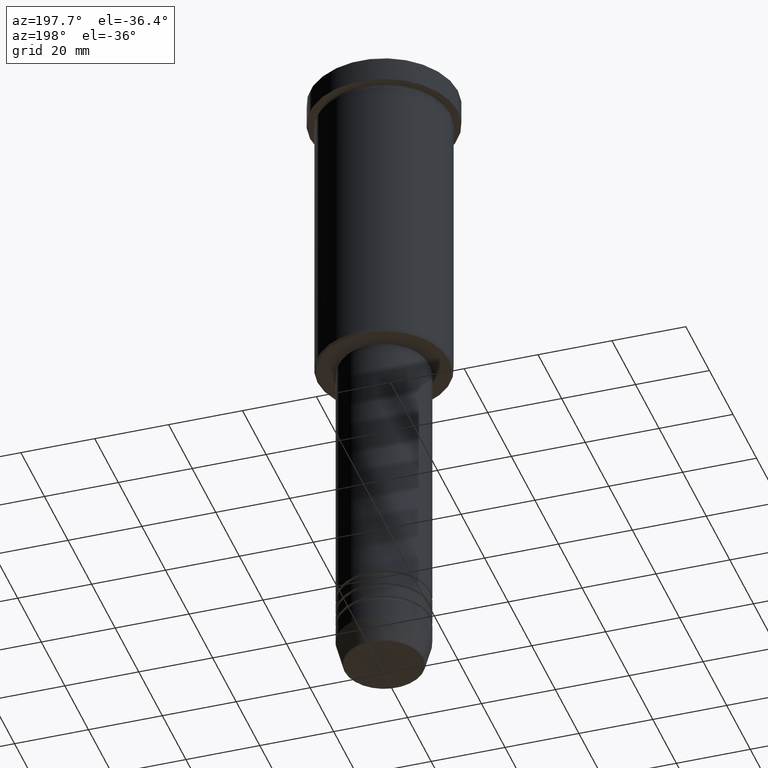
[diagram: clean part render]
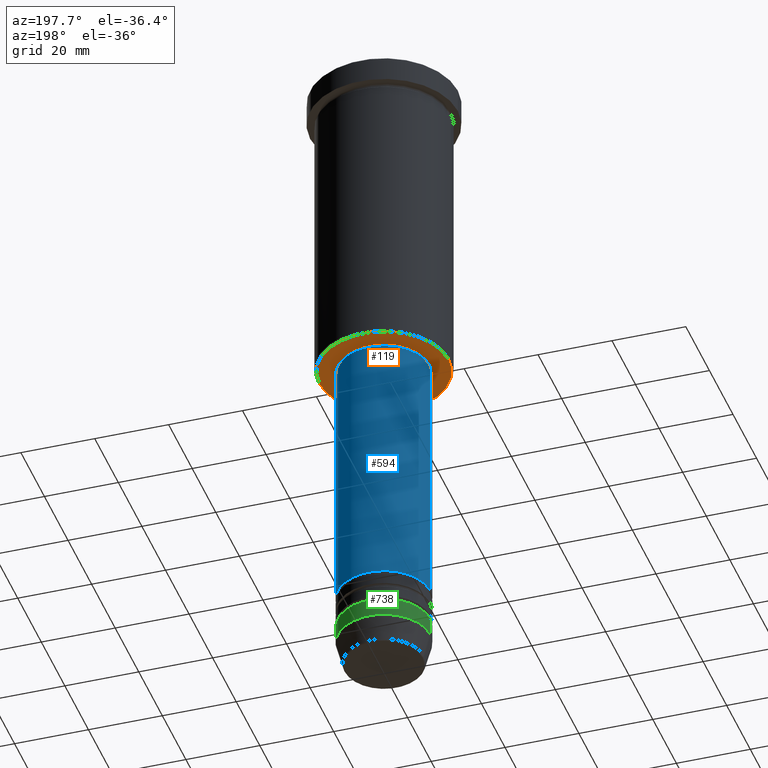
[diagram: same view with three faces highlighted in distinct colors, each labeled with its STEP entity id]
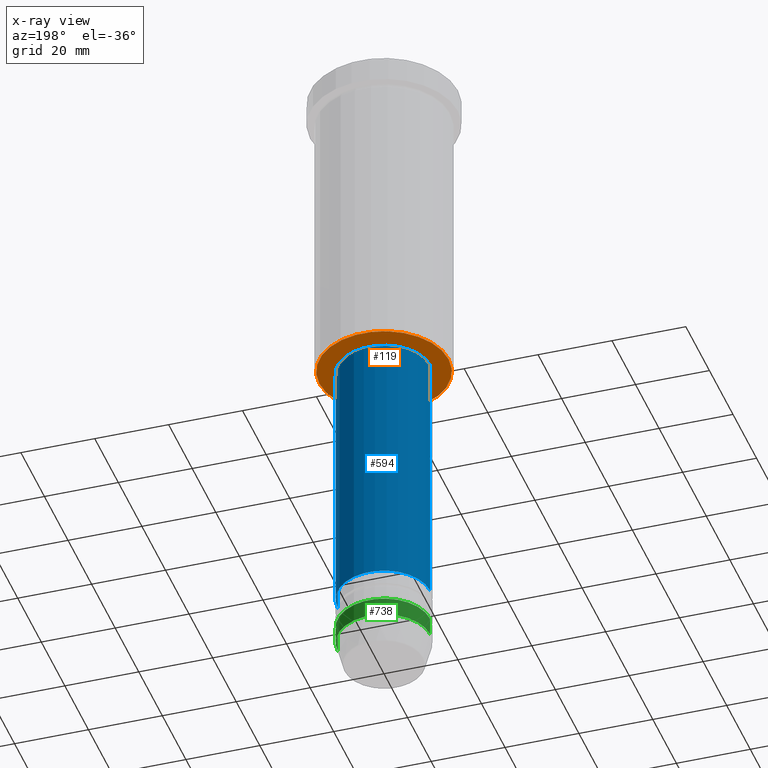
[diagram: x-ray of the same camera — body ghosted, the three highlighted faces saturated]
A machine part, auxiliary view with three faces highlighted in distinct colors.
The next image is the same camera in x-ray (body ghosted, the three faces saturated) — at least one of them is partly hidden behind the body in this view.
Their STEP definitions:

[orange] entity #119 — the highlighted planar face has unit normal (0, 0, -1).
#14 = DIRECTION ( 'NONE',  ( -0.000000000000000000, -0.000000000000000000, 1.000000000000000000 ) ) ;
#36 = EDGE_CURVE ( 'NONE', #786, #39, #1072, .T. ) ;
#39 = VERTEX_POINT ( 'NONE', #999 ) ;
#101 = DIRECTION ( 'NONE',  ( -1.000000000000000000, 0.000000000000000000, 0.000000000000000000 ) ) ;
#119 = ADVANCED_FACE ( 'NONE', ( #498, #677 ), #316, .T. ) ;
#122 = DIRECTION ( 'NONE',  ( 0.000000000000000000, 0.000000000000000000, -1.000000000000000000 ) ) ;
#128 = ORIENTED_EDGE ( 'NONE', *, *, #656, .T. ) ;
#132 = ORIENTED_EDGE ( 'NONE', *, *, #826, .T. ) ;
#308 = DIRECTION ( 'NONE',  ( -1.000000000000000000, 0.000000000000000000, 0.000000000000000000 ) ) ;
#312 = VERTEX_POINT ( 'NONE', #512 ) ;
#316 = PLANE ( 'NONE',  #1168 ) ;
#318 = CARTESIAN_POINT ( 'NONE',  ( 17.49999999999997513, 0.000000000000000000, -86.00000000000000000 ) ) ;
#324 = DIRECTION ( 'NONE',  ( -0.000000000000000000, -0.000000000000000000, 1.000000000000000000 ) ) ;
#367 = CIRCLE ( 'NONE', #891, 17.49999999999997513 ) ;
#384 = AXIS2_PLACEMENT_3D ( 'NONE', #915, #14, #634 ) ;
#399 = CARTESIAN_POINT ( 'NONE',  ( 0.000000000000000000, 18.00000000000000000, -86.00000000000000000 ) ) ;
#403 = AXIS2_PLACEMENT_3D ( 'NONE', #991, #926, #101 ) ;
#426 = CIRCLE ( 'NONE', #447, 12.00000000000000000 ) ;
#447 = AXIS2_PLACEMENT_3D ( 'NONE', #1041, #324, #768 ) ;
#490 = EDGE_LOOP ( 'NONE', ( #734, #574 ) ) ;
#498 = FACE_OUTER_BOUND ( 'NONE', #792, .T. ) ;
#512 = CARTESIAN_POINT ( 'NONE',  ( -17.49999999999997513, 2.173748068486550063E-15, -86.00000000000000000 ) ) ;
#574 = ORIENTED_EDGE ( 'NONE', *, *, #1066, .T. ) ;
#634 = DIRECTION ( 'NONE',  ( 1.000000000000000000, 0.000000000000000000, 0.000000000000000000 ) ) ;
#656 = EDGE_CURVE ( 'NONE', #312, #820, #1077, .T. ) ;
#677 = FACE_BOUND ( 'NONE', #490, .T. ) ;
#734 = ORIENTED_EDGE ( 'NONE', *, *, #36, .T. ) ;
#768 = DIRECTION ( 'NONE',  ( 1.000000000000000000, 0.000000000000000000, 0.000000000000000000 ) ) ;
#786 = VERTEX_POINT ( 'NONE', #956 ) ;
#792 = EDGE_LOOP ( 'NONE', ( #132, #128 ) ) ;
#820 = VERTEX_POINT ( 'NONE', #318 ) ;
#826 = EDGE_CURVE ( 'NONE', #820, #312, #367, .T. ) ;
#891 = AXIS2_PLACEMENT_3D ( 'NONE', #1140, #122, #308 ) ;
#915 = CARTESIAN_POINT ( 'NONE',  ( 0.000000000000000000, 0.000000000000000000, -86.00000000000000000 ) ) ;
#926 = DIRECTION ( 'NONE',  ( 0.000000000000000000, 0.000000000000000000, -1.000000000000000000 ) ) ;
#956 = CARTESIAN_POINT ( 'NONE',  ( 12.00000000000000000, 0.000000000000000000, -86.00000000000000000 ) ) ;
#958 = DIRECTION ( 'NONE',  ( -1.000000000000000000, 0.000000000000000000, -0.000000000000000000 ) ) ;
#991 = CARTESIAN_POINT ( 'NONE',  ( 0.000000000000000000, 0.000000000000000000, -86.00000000000000000 ) ) ;
#999 = CARTESIAN_POINT ( 'NONE',  ( -12.00000000000000000, 1.469576158976823947E-15, -86.00000000000000000 ) ) ;
#1041 = CARTESIAN_POINT ( 'NONE',  ( 0.000000000000000000, 0.000000000000000000, -86.00000000000000000 ) ) ;
#1042 = DIRECTION ( 'NONE',  ( 0.000000000000000000, 0.000000000000000000, -1.000000000000000000 ) ) ;
#1066 = EDGE_CURVE ( 'NONE', #39, #786, #426, .T. ) ;
#1072 = CIRCLE ( 'NONE', #384, 12.00000000000000000 ) ;
#1077 = CIRCLE ( 'NONE', #403, 17.49999999999997513 ) ;
#1140 = CARTESIAN_POINT ( 'NONE',  ( 0.000000000000000000, 0.000000000000000000, -86.00000000000000000 ) ) ;
#1168 = AXIS2_PLACEMENT_3D ( 'NONE', #399, #1042, #958 ) ;

[blue] entity #594 — the highlighted cylindrical surface (partial cylindrical patch) has radius 12.5 mm, axis along (-0, -0, 1).
#47 = AXIS2_PLACEMENT_3D ( 'NONE', #147, #444, #784 ) ;
#59 = EDGE_CURVE ( 'NONE', #84, #456, #672, .T. ) ;
#84 = VERTEX_POINT ( 'NONE', #853 ) ;
#123 = AXIS2_PLACEMENT_3D ( 'NONE', #509, #601, #706 ) ;
#147 = CARTESIAN_POINT ( 'NONE',  ( 0.000000000000000000, 0.000000000000000000, -159.0000000000000000 ) ) ;
#158 = FACE_OUTER_BOUND ( 'NONE', #935, .T. ) ;
#173 = EDGE_CURVE ( 'NONE', #592, #1045, #573, .T. ) ;
#212 = ORIENTED_EDGE ( 'NONE', *, *, #59, .F. ) ;
#259 = ORIENTED_EDGE ( 'NONE', *, *, #496, .F. ) ;
#439 = CYLINDRICAL_SURFACE ( 'NONE', #123, 12.50000000000000000 ) ;
#444 = DIRECTION ( 'NONE',  ( -0.000000000000000000, -0.000000000000000000, 1.000000000000000000 ) ) ;
#455 = CARTESIAN_POINT ( 'NONE',  ( 12.50000000000000000, 0.000000000000000000, -87.00000000000002842 ) ) ;
#456 = VERTEX_POINT ( 'NONE', #455 ) ;
#466 = CIRCLE ( 'NONE', #47, 12.50000000000000000 ) ;
#482 = AXIS2_PLACEMENT_3D ( 'NONE', #1089, #559, #640 ) ;
#496 = EDGE_CURVE ( 'NONE', #456, #1045, #812, .T. ) ;
#507 = ORIENTED_EDGE ( 'NONE', *, *, #937, .T. ) ;
#509 = CARTESIAN_POINT ( 'NONE',  ( 0.000000000000000000, 0.000000000000000000, 0.000000000000000000 ) ) ;
#559 = DIRECTION ( 'NONE',  ( -0.000000000000000000, -0.000000000000000000, 1.000000000000000000 ) ) ;
#573 = LINE ( 'NONE', #949, #1092 ) ;
#580 = DIRECTION ( 'NONE',  ( -0.000000000000000000, -0.000000000000000000, 1.000000000000000000 ) ) ;
#592 = VERTEX_POINT ( 'NONE', #1150 ) ;
#594 = ADVANCED_FACE ( 'NONE', ( #158 ), #439, .T. ) ;
#601 = DIRECTION ( 'NONE',  ( -0.000000000000000000, -0.000000000000000000, 1.000000000000000000 ) ) ;
#609 = ORIENTED_EDGE ( 'NONE', *, *, #173, .T. ) ;
#640 = DIRECTION ( 'NONE',  ( 1.000000000000000000, 0.000000000000000000, 0.000000000000000000 ) ) ;
#672 = LINE ( 'NONE', #860, #755 ) ;
#706 = DIRECTION ( 'NONE',  ( 1.000000000000000000, 0.000000000000000000, 0.000000000000000000 ) ) ;
#755 = VECTOR ( 'NONE', #580, 1000.000000000000000 ) ;
#784 = DIRECTION ( 'NONE',  ( 1.000000000000000000, 0.000000000000000000, 0.000000000000000000 ) ) ;
#812 = CIRCLE ( 'NONE', #482, 12.50000000000000000 ) ;
#852 = CARTESIAN_POINT ( 'NONE',  ( -12.50000000000000000, 1.530808498934191521E-15, -87.00000000000002842 ) ) ;
#853 = CARTESIAN_POINT ( 'NONE',  ( 12.50000000000000000, 0.000000000000000000, -159.0000000000000000 ) ) ;
#860 = CARTESIAN_POINT ( 'NONE',  ( 12.50000000000000000, 0.000000000000000000, 0.000000000000000000 ) ) ;
#935 = EDGE_LOOP ( 'NONE', ( #507, #609, #259, #212 ) ) ;
#937 = EDGE_CURVE ( 'NONE', #84, #592, #466, .T. ) ;
#949 = CARTESIAN_POINT ( 'NONE',  ( -12.50000000000000000, 1.530808498934191521E-15, 0.000000000000000000 ) ) ;
#1045 = VERTEX_POINT ( 'NONE', #852 ) ;
#1047 = DIRECTION ( 'NONE',  ( -0.000000000000000000, -0.000000000000000000, 1.000000000000000000 ) ) ;
#1089 = CARTESIAN_POINT ( 'NONE',  ( 0.000000000000000000, 0.000000000000000000, -87.00000000000002842 ) ) ;
#1092 = VECTOR ( 'NONE', #1047, 1000.000000000000000 ) ;
#1150 = CARTESIAN_POINT ( 'NONE',  ( -12.50000000000000000, 1.530808498934191521E-15, -159.0000000000000000 ) ) ;

[green] entity #738 — the highlighted cylindrical surface (partial cylindrical patch) has radius 12.5 mm, axis along (-0, -0, 1).
#33 = LINE ( 'NONE', #773, #479 ) ;
#38 = DIRECTION ( 'NONE',  ( -0.000000000000000000, -0.000000000000000000, 1.000000000000000000 ) ) ;
#96 = DIRECTION ( 'NONE',  ( -0.000000000000000000, -0.000000000000000000, 1.000000000000000000 ) ) ;
#117 = VERTEX_POINT ( 'NONE', #382 ) ;
#150 = EDGE_CURVE ( 'NONE', #433, #643, #33, .T. ) ;
#153 = DIRECTION ( 'NONE',  ( -0.000000000000000000, -0.000000000000000000, 1.000000000000000000 ) ) ;
#191 = CYLINDRICAL_SURFACE ( 'NONE', #545, 12.50000000000000000 ) ;
#203 = CARTESIAN_POINT ( 'NONE',  ( 0.000000000000000000, 0.000000000000000000, 0.000000000000000000 ) ) ;
#207 = CARTESIAN_POINT ( 'NONE',  ( -12.50000000000000000, 1.530808498934191521E-15, 0.000000000000000000 ) ) ;
#218 = EDGE_CURVE ( 'NONE', #499, #117, #1028, .T. ) ;
#255 = DIRECTION ( 'NONE',  ( 1.000000000000000000, 0.000000000000000000, 0.000000000000000000 ) ) ;
#271 = CARTESIAN_POINT ( 'NONE',  ( 12.50000000000000000, 0.000000000000000000, -173.0000000000000284 ) ) ;
#358 = DIRECTION ( 'NONE',  ( 1.000000000000000000, 0.000000000000000000, 0.000000000000000000 ) ) ;
#382 = CARTESIAN_POINT ( 'NONE',  ( -12.50000000000000000, 1.530808498934191521E-15, -168.0000000000000000 ) ) ;
#388 = CIRCLE ( 'NONE', #814, 12.50000000000000000 ) ;
#433 = VERTEX_POINT ( 'NONE', #271 ) ;
#479 = VECTOR ( 'NONE', #1127, 1000.000000000000000 ) ;
#494 = ORIENTED_EDGE ( 'NONE', *, *, #218, .T. ) ;
#499 = VERTEX_POINT ( 'NONE', #1007 ) ;
#540 = CARTESIAN_POINT ( 'NONE',  ( 0.000000000000000000, 0.000000000000000000, -173.0000000000000284 ) ) ;
#545 = AXIS2_PLACEMENT_3D ( 'NONE', #203, #96, #358 ) ;
#562 = EDGE_CURVE ( 'NONE', #643, #117, #696, .T. ) ;
#596 = ORIENTED_EDGE ( 'NONE', *, *, #150, .F. ) ;
#619 = AXIS2_PLACEMENT_3D ( 'NONE', #884, #153, #255 ) ;
#643 = VERTEX_POINT ( 'NONE', #984 ) ;
#696 = CIRCLE ( 'NONE', #619, 12.50000000000000000 ) ;
#699 = EDGE_CURVE ( 'NONE', #433, #499, #388, .T. ) ;
#709 = EDGE_LOOP ( 'NONE', ( #895, #494, #1059, #596 ) ) ;
#738 = ADVANCED_FACE ( 'NONE', ( #917 ), #191, .T. ) ;
#773 = CARTESIAN_POINT ( 'NONE',  ( 12.50000000000000000, 0.000000000000000000, 0.000000000000000000 ) ) ;
#814 = AXIS2_PLACEMENT_3D ( 'NONE', #540, #936, #1023 ) ;
#884 = CARTESIAN_POINT ( 'NONE',  ( 0.000000000000000000, 0.000000000000000000, -168.0000000000000000 ) ) ;
#895 = ORIENTED_EDGE ( 'NONE', *, *, #699, .T. ) ;
#917 = FACE_OUTER_BOUND ( 'NONE', #709, .T. ) ;
#936 = DIRECTION ( 'NONE',  ( -0.000000000000000000, -0.000000000000000000, 1.000000000000000000 ) ) ;
#984 = CARTESIAN_POINT ( 'NONE',  ( 12.50000000000000000, 0.000000000000000000, -168.0000000000000000 ) ) ;
#1007 = CARTESIAN_POINT ( 'NONE',  ( -12.50000000000000000, 1.530808498934191521E-15, -173.0000000000000284 ) ) ;
#1023 = DIRECTION ( 'NONE',  ( 1.000000000000000000, 0.000000000000000000, 0.000000000000000000 ) ) ;
#1028 = LINE ( 'NONE', #207, #1151 ) ;
#1059 = ORIENTED_EDGE ( 'NONE', *, *, #562, .F. ) ;
#1127 = DIRECTION ( 'NONE',  ( -0.000000000000000000, -0.000000000000000000, 1.000000000000000000 ) ) ;
#1151 = VECTOR ( 'NONE', #38, 1000.000000000000000 ) ;